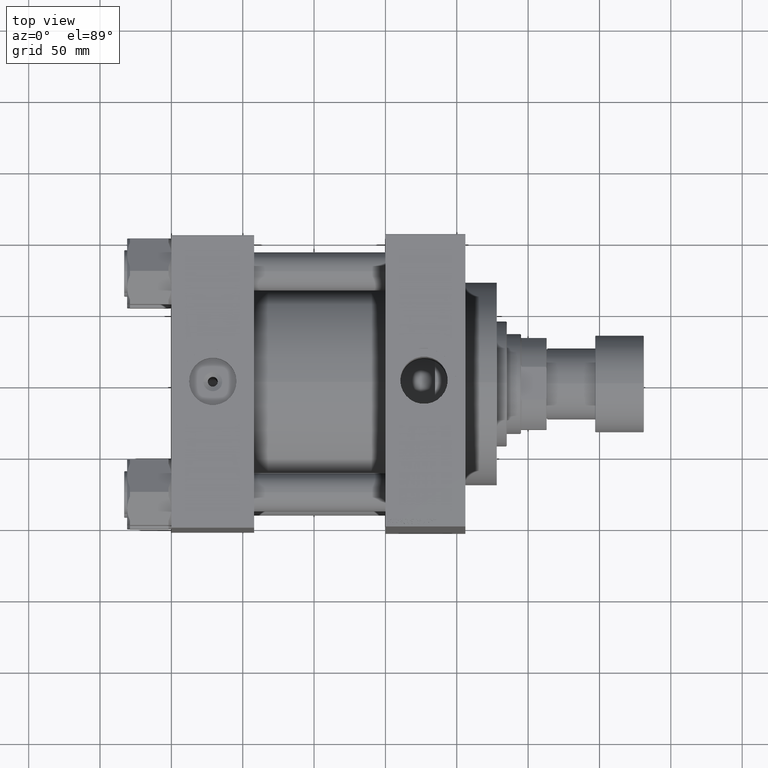
[diagram: clean part render]
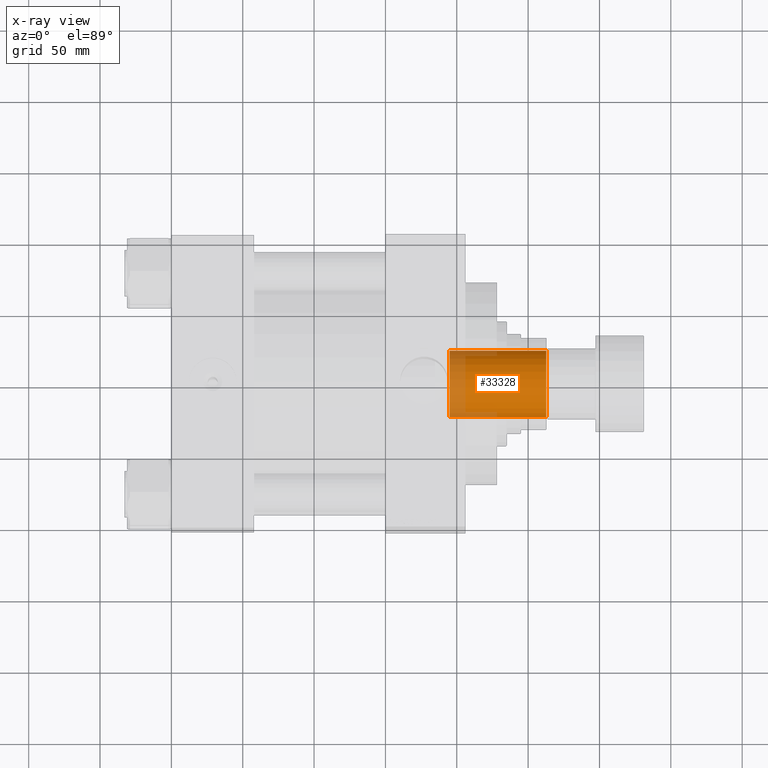
[diagram: x-ray — body ghosted, one internal face saturated and labeled with its STEP entity id]
A machine part, top view, then the same camera in x-ray: the body is ghosted and one INTERNAL B-rep face — a face not visible from any outside direction — is saturated and labeled: STEP entity #33328.
In plain terms, the highlighted cylindrical surface (edge-blend (fillet) strip) has radius 23.25 mm, axis along (1, 0, 0).
Its self-contained STEP definition (entity closure, byte-faithful):
#2276 = FACE_OUTER_BOUND ( 'NONE', #22920, .T. ) ;
#3780 = ORIENTED_EDGE ( 'NONE', *, *, #8336, .F. ) ;
#4305 = CIRCLE ( 'NONE', #40097, 23.24999999999999289 ) ;
#5119 = EDGE_CURVE ( 'NONE', #12089, #5922, #43080, .T. ) ;
#5682 = DIRECTION ( 'NONE',  ( -0.000000000000000000, -0.000000000000000000, 1.000000000000000000 ) ) ;
#5922 = VERTEX_POINT ( 'NONE', #35537 ) ;
#6572 = VERTEX_POINT ( 'NONE', #29278 ) ;
#8336 = EDGE_CURVE ( 'NONE', #5922, #6572, #46318, .T. ) ;
#11158 = DIRECTION ( 'NONE',  ( -0.000000000000000000, -0.000000000000000000, 1.000000000000000000 ) ) ;
#12089 = VERTEX_POINT ( 'NONE', #39301 ) ;
#12540 = CYLINDRICAL_SURFACE ( 'NONE', #35603, 23.24999999999999289 ) ;
#13252 = DIRECTION ( 'NONE',  ( -0.000000000000000000, -0.000000000000000000, 1.000000000000000000 ) ) ;
#14194 = ORIENTED_EDGE ( 'NONE', *, *, #26276, .T. ) ;
#14438 = CARTESIAN_POINT ( 'NONE',  ( 0.000000000000000000, 0.000000000000000000, 204.6999999999999886 ) ) ;
#14803 = LINE ( 'NONE', #29625, #38739 ) ;
#19031 = ORIENTED_EDGE ( 'NONE', *, *, #5119, .F. ) ;
#19538 = CARTESIAN_POINT ( 'NONE',  ( 23.24999999999999289, 0.000000000000000000, 205.0000000000000000 ) ) ;
#20647 = VERTEX_POINT ( 'NONE', #31632 ) ;
#22920 = EDGE_LOOP ( 'NONE', ( #19031, #35451, #14194, #3780 ) ) ;
#24401 = DIRECTION ( 'NONE',  ( 1.000000000000000000, 0.000000000000000000, 0.000000000000000000 ) ) ;
#26276 = EDGE_CURVE ( 'NONE', #20647, #6572, #4305, .T. ) ;
#27352 = DIRECTION ( 'NONE',  ( 1.000000000000000000, 0.000000000000000000, 0.000000000000000000 ) ) ;
#27370 = DIRECTION ( 'NONE',  ( -0.000000000000000000, -0.000000000000000000, 1.000000000000000000 ) ) ;
#27608 = CARTESIAN_POINT ( 'NONE',  ( 0.000000000000000000, 0.000000000000000000, 136.9999999999999716 ) ) ;
#28757 = DIRECTION ( 'NONE',  ( 0.000000000000000000, 0.000000000000000000, 1.000000000000000000 ) ) ;
#29278 = CARTESIAN_POINT ( 'NONE',  ( 23.24999999999999289, 0.000000000000000000, 204.6999999999999886 ) ) ;
#29625 = CARTESIAN_POINT ( 'NONE',  ( -23.24999999999999289, 2.847303808017595350E-15, 205.0000000000000000 ) ) ;
#29861 = AXIS2_PLACEMENT_3D ( 'NONE', #27608, #27370, #38345 ) ;
#31632 = CARTESIAN_POINT ( 'NONE',  ( -23.24999999999999289, 2.847303808017595350E-15, 204.6999999999999886 ) ) ;
#32799 = EDGE_CURVE ( 'NONE', #12089, #20647, #14803, .T. ) ;
#33328 = ADVANCED_FACE ( 'NONE', ( #2276 ), #12540, .F. ) ;
#35451 = ORIENTED_EDGE ( 'NONE', *, *, #32799, .T. ) ;
#35537 = CARTESIAN_POINT ( 'NONE',  ( 23.24999999999998579, 0.000000000000000000, 136.9999999999999716 ) ) ;
#35603 = AXIS2_PLACEMENT_3D ( 'NONE', #46582, #13252, #27352 ) ;
#38345 = DIRECTION ( 'NONE',  ( 1.000000000000000000, 0.000000000000000000, 0.000000000000000000 ) ) ;
#38739 = VECTOR ( 'NONE', #11158, 1000.000000000000000 ) ;
#39301 = CARTESIAN_POINT ( 'NONE',  ( -23.24999999999998579, 2.847303808017594561E-15, 136.9999999999999716 ) ) ;
#40097 = AXIS2_PLACEMENT_3D ( 'NONE', #14438, #28757, #24401 ) ;
#43080 = CIRCLE ( 'NONE', #29861, 23.24999999999998579 ) ;
#43215 = VECTOR ( 'NONE', #5682, 1000.000000000000000 ) ;
#46318 = LINE ( 'NONE', #19538, #43215 ) ;
#46582 = CARTESIAN_POINT ( 'NONE',  ( 0.000000000000000000, 0.000000000000000000, 205.0000000000000000 ) ) ;